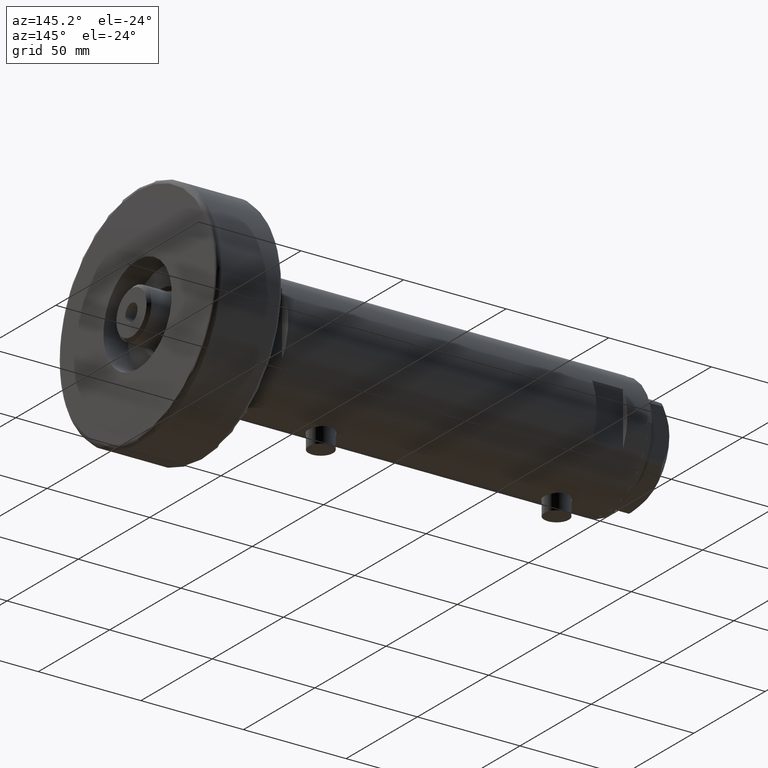
[diagram: clean part render]
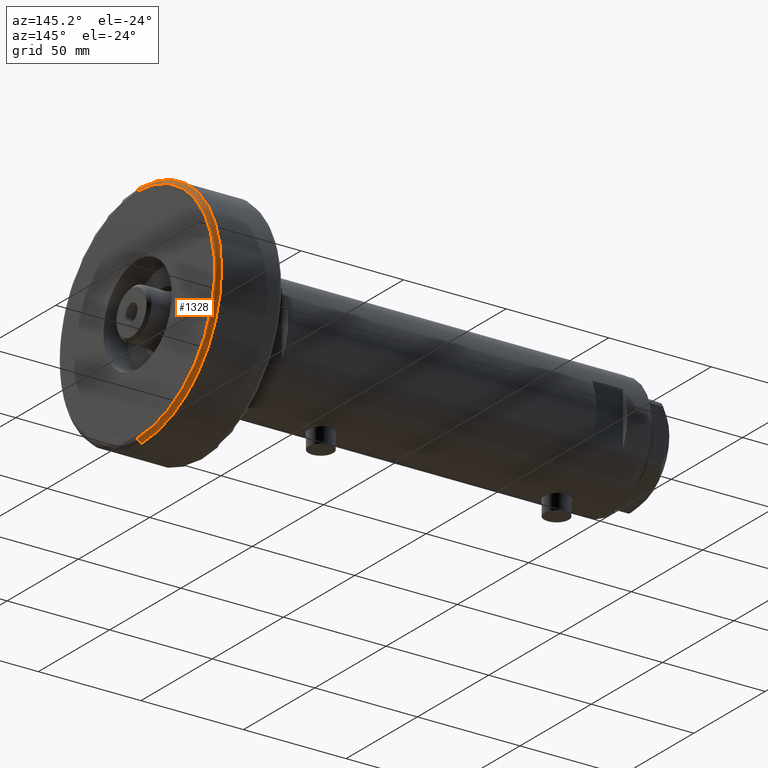
[diagram: same view with one face highlighted and labeled with its STEP entity id]
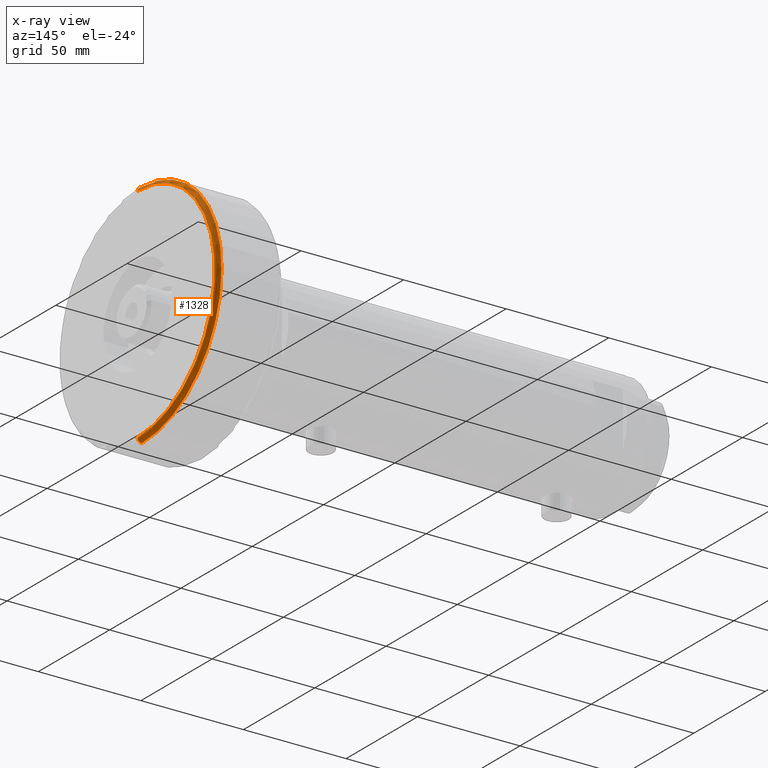
[diagram: x-ray of the same camera — body ghosted, the highlighted face saturated]
A machine part, auxiliary view. The second image highlights one B-rep face of the part: STEP entity #1328.
The next image is the same camera in x-ray: the body ghosted, the highlighted face saturated — about 0% of this face is hidden behind the body in this view.
In plain terms, the highlighted toroidal blend (fillet) surface has major radius 54 mm and minor (blend) radius 2 mm.
Its self-contained STEP definition (entity closure, byte-faithful):
#58 = DIRECTION ( 'NONE',  ( 1.000000000000000000, 0.000000000000000000, 0.000000000000000000 ) ) ;
#129 = CIRCLE ( 'NONE', #517, 54.00000000000000000 ) ;
#282 = DIRECTION ( 'NONE',  ( 1.000000000000000000, 0.000000000000000000, 0.000000000000000000 ) ) ;
#284 = CIRCLE ( 'NONE', #3078, 2.000000000000001776 ) ;
#487 = DIRECTION ( 'NONE',  ( 1.224646799147353207E-16, 1.000000000000000000, -0.000000000000000000 ) ) ;
#517 = AXIS2_PLACEMENT_3D ( 'NONE', #1217, #2054, #58 ) ;
#979 = EDGE_CURVE ( 'NONE', #1453, #3790, #284, .T. ) ;
#985 = DIRECTION ( 'NONE',  ( 0.000000000000000000, 0.000000000000000000, 1.000000000000000000 ) ) ;
#1109 = CARTESIAN_POINT ( 'NONE',  ( 0.000000000000000000, 0.000000000000000000, 30.00000000000000000 ) ) ;
#1159 = DIRECTION ( 'NONE',  ( 0.000000000000000000, 0.000000000000000000, -1.000000000000000000 ) ) ;
#1217 = CARTESIAN_POINT ( 'NONE',  ( 0.000000000000000000, 0.000000000000000000, 32.00000000000000000 ) ) ;
#1222 = CIRCLE ( 'NONE', #2865, 56.00000000000000000 ) ;
#1328 = ADVANCED_FACE ( 'NONE', ( #3785 ), #3722, .T. ) ;
#1338 = VERTEX_POINT ( 'NONE', #2967 ) ;
#1453 = VERTEX_POINT ( 'NONE', #3052 ) ;
#1482 = EDGE_CURVE ( 'NONE', #2770, #1453, #1222, .T. ) ;
#1536 = EDGE_CURVE ( 'NONE', #2770, #1338, #4581, .T. ) ;
#1576 = DIRECTION ( 'NONE',  ( 1.000000000000000000, 0.000000000000000000, 0.000000000000000000 ) ) ;
#1616 = EDGE_LOOP ( 'NONE', ( #4394, #2455, #4313, #4556 ) ) ;
#1990 = CARTESIAN_POINT ( 'NONE',  ( -54.00000000000000000, 6.613092715395707467E-15, 30.00000000000000000 ) ) ;
#2054 = DIRECTION ( 'NONE',  ( 0.000000000000000000, 0.000000000000000000, 1.000000000000000000 ) ) ;
#2282 = EDGE_CURVE ( 'NONE', #3790, #1338, #129, .T. ) ;
#2455 = ORIENTED_EDGE ( 'NONE', *, *, #1536, .T. ) ;
#2770 = VERTEX_POINT ( 'NONE', #3090 ) ;
#2865 = AXIS2_PLACEMENT_3D ( 'NONE', #3806, #4605, #1576 ) ;
#2888 = CARTESIAN_POINT ( 'NONE',  ( 54.00000000000000000, 0.000000000000000000, 32.00000000000000000 ) ) ;
#2962 = DIRECTION ( 'NONE',  ( 0.000000000000000000, -1.000000000000000000, 0.000000000000000000 ) ) ;
#2967 = CARTESIAN_POINT ( 'NONE',  ( -54.00000000000000000, 6.735557395310443404E-15, 32.00000000000000000 ) ) ;
#3052 = CARTESIAN_POINT ( 'NONE',  ( 56.00000000000000000, 6.858022075225178552E-15, 30.00000000000000000 ) ) ;
#3078 = AXIS2_PLACEMENT_3D ( 'NONE', #3737, #2962, #1159 ) ;
#3090 = CARTESIAN_POINT ( 'NONE',  ( -56.00000000000000000, 0.000000000000000000, 30.00000000000000000 ) ) ;
#3478 = DIRECTION ( 'NONE',  ( -1.000000000000000000, 1.224646799147353454E-16, 0.000000000000000000 ) ) ;
#3722 = TOROIDAL_SURFACE ( 'NONE', #4262, 54.00000000000000000, 2.000000000000000000 ) ;
#3727 = AXIS2_PLACEMENT_3D ( 'NONE', #1990, #487, #3478 ) ;
#3737 = CARTESIAN_POINT ( 'NONE',  ( 54.00000000000000000, 0.000000000000000000, 30.00000000000000000 ) ) ;
#3785 = FACE_OUTER_BOUND ( 'NONE', #1616, .T. ) ;
#3790 = VERTEX_POINT ( 'NONE', #2888 ) ;
#3806 = CARTESIAN_POINT ( 'NONE',  ( 0.000000000000000000, 0.000000000000000000, 30.00000000000000000 ) ) ;
#4262 = AXIS2_PLACEMENT_3D ( 'NONE', #1109, #985, #282 ) ;
#4313 = ORIENTED_EDGE ( 'NONE', *, *, #2282, .F. ) ;
#4394 = ORIENTED_EDGE ( 'NONE', *, *, #1482, .F. ) ;
#4556 = ORIENTED_EDGE ( 'NONE', *, *, #979, .F. ) ;
#4581 = CIRCLE ( 'NONE', #3727, 2.000000000000001776 ) ;
#4605 = DIRECTION ( 'NONE',  ( -0.000000000000000000, -0.000000000000000000, -1.000000000000000000 ) ) ;